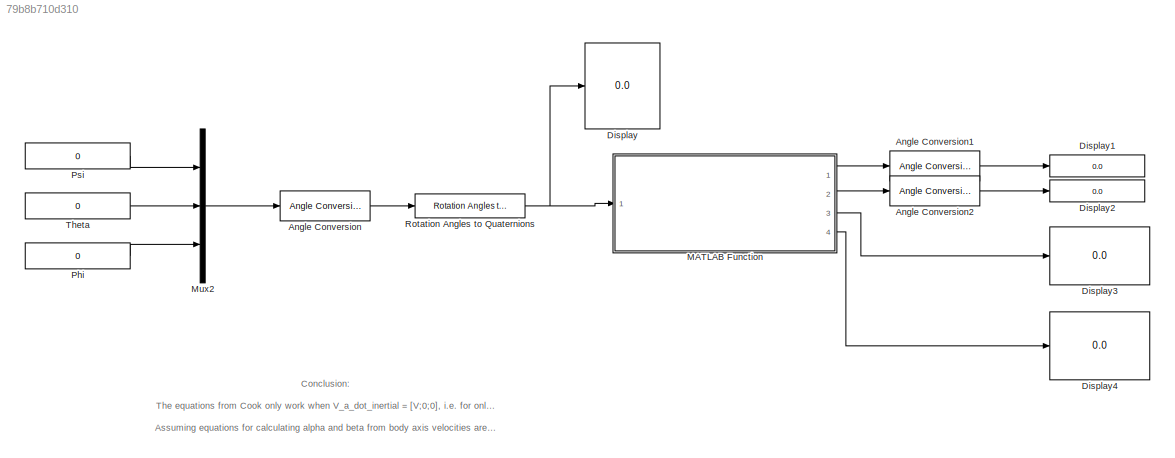
MODEL slx_79b8b710d310
KIND model
CONFIG AbsTol = auto
CONFIG FixedStep = 0.001
CONFIG MaxStep = auto
CONFIG MinStep = auto
CONFIG RelTol = 1e-3
CONFIG SampleTimeConstraint = Unconstrained
CONFIG Solver = ode4
CONFIG SolverMode = Auto
CONFIG SolverName = ode4
CONFIG StartTime = 0.0
CONFIG StopTime = 10.0
BLOCK [Reference] Angle Conversion  REF=aerolibconvert2/Angle Conversion
  Ports = [1, 1]
  SourceBlock = aerolibconvert2/Angle Conversion
  SourceType = Angle Conversion
BLOCK [Reference] Angle Conversion1  REF=aerolibconvert2/Angle Conversion
  Ports = [1, 1]
  SourceBlock = aerolibconvert2/Angle Conversion
  SourceType = Angle Conversion
BLOCK [Reference] Angle Conversion2  REF=aerolibconvert2/Angle Conversion
  Ports = [1, 1]
  SourceBlock = aerolibconvert2/Angle Conversion
  SourceType = Angle Conversion
BLOCK [Display] Display
  Decimation = 1
  Ports = [1]
BLOCK [Display] Display1
  Decimation = 1
  Ports = [1]
BLOCK [Display] Display2
  Decimation = 1
  Ports = [1]
BLOCK [Display] Display3
  Decimation = 1
  Ports = [1]
BLOCK [Display] Display4
  Decimation = 1
  Ports = [1]
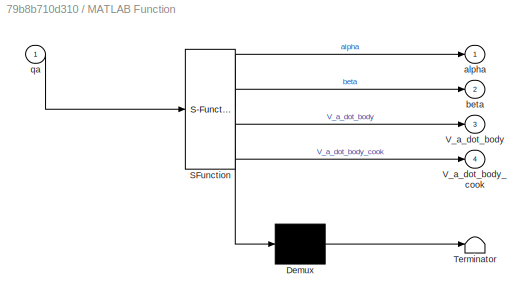
BLOCK [SubSystem] MATLAB Function
  ErrorFcn = Stateflow.Translate.translate
  PermitHierarchicalResolution = ExplicitOnly
  Ports = [1, 4]
  RequestExecContextInheritance = off
  SFBlockType = MATLAB Function
  TreatAsAtomicUnit = on
  Variant = off
BLOCK [Demux] MATLAB Function/ Demux 
  Outputs = 1
  Ports = [1, 1]
BLOCK [S-Function] MATLAB Function/ SFunction 
  EnableBusSupport = on
  FunctionName = sf_sfun
  PortCounts = [1 5]
  Ports = [1, 5]
  SFunctionDeploymentMode = off
  Tag = Stateflow S-Function Check_alpha_beta_from_quaternions 2
BLOCK [Terminator] MATLAB Function/ Terminator 
BLOCK [Outport] MATLAB Function/V_a_dot_body
  IconDisplay = Port number
  Port = 3
BLOCK [Outport] MATLAB Function/V_a_dot_body_cook
  IconDisplay = Port number
  Port = 4
BLOCK [Outport] MATLAB Function/alpha
  IconDisplay = Port number
BLOCK [Outport] MATLAB Function/beta
  IconDisplay = Port number
  Port = 2
BLOCK [Inport] MATLAB Function/qa
  IconDisplay = Port number
BLOCK [Mux] Mux2
  DisplayOption = bar
  Inputs = 3
  Ports = [3, 1]
BLOCK [Constant] Phi
  Value = 0
BLOCK [Constant] Psi
  Value = 0
BLOCK [Reference] Rotation Angles to Quaternions  REF=aerolibtransform2/Rotation Angles to Quaternions
  AttributesFormatString = Rotation Order: %<rotationOrder>
  Ports = [1, 1]
  SourceBlock = aerolibtransform2/Rotation Angles to Quaternions
  SourceType = Ang2Quat
BLOCK [Constant] Theta
  Value = 0
ANNOTATION (root): Conclusion: The equations from Cook only work when V_a_dot_inertial = [V;0;0], i.e. for only forward velocities Assuming equations for calculating alpha and beta from body axis velocities are correct
LINE Angle Conversion1:1 -> Display1:1
LINE Angle Conversion2:1 -> Display2:1
LINE Angle Conversion:1 -> Rotation Angles to Quaternions:1
LINE MATLAB Function:1 -> Angle Conversion1:1
LINE MATLAB Function:2 -> Angle Conversion2:1
LINE MATLAB Function:3 -> Display3:1
LINE MATLAB Function:4 -> Display4:1
LINE Mux2:1 -> Angle Conversion:1
LINE Phi:1 -> Mux2:3
LINE Psi:1 -> Mux2:1
NET Rotation Angles to Quaternions:1 -> Display:1, MATLAB Function:1
LINE Theta:1 -> Mux2:2
note: NET lines group one-source signal fan-out (src -> all destinations, sorted); 1:1 wires keep LINE
CHART MATLAB Function states=1 transitions=1
  STATE_LABEL 'eML_blk_kernel()'
  STATE_LABEL 'SCRIPT:\nfunction [alpha,beta,V_a_dot_body,V_a_dot_body_cook]= fcn(qa)\n% Velocity of aircraft in inertial axes\nqa_dot = [  0\n            0\n            10  ];\n\nV_t = 30; % Tunnel windspeed (m/s)\n\n%% Transformation matrices\n\n% Quaternion parameters (for phi=10deg, theta=20deg, psi=30deg, \n% found using "Rotation Angles to Quaternions" block with rotation order ZYX\n% where first angle input is psi, se...<+1647ch>'
